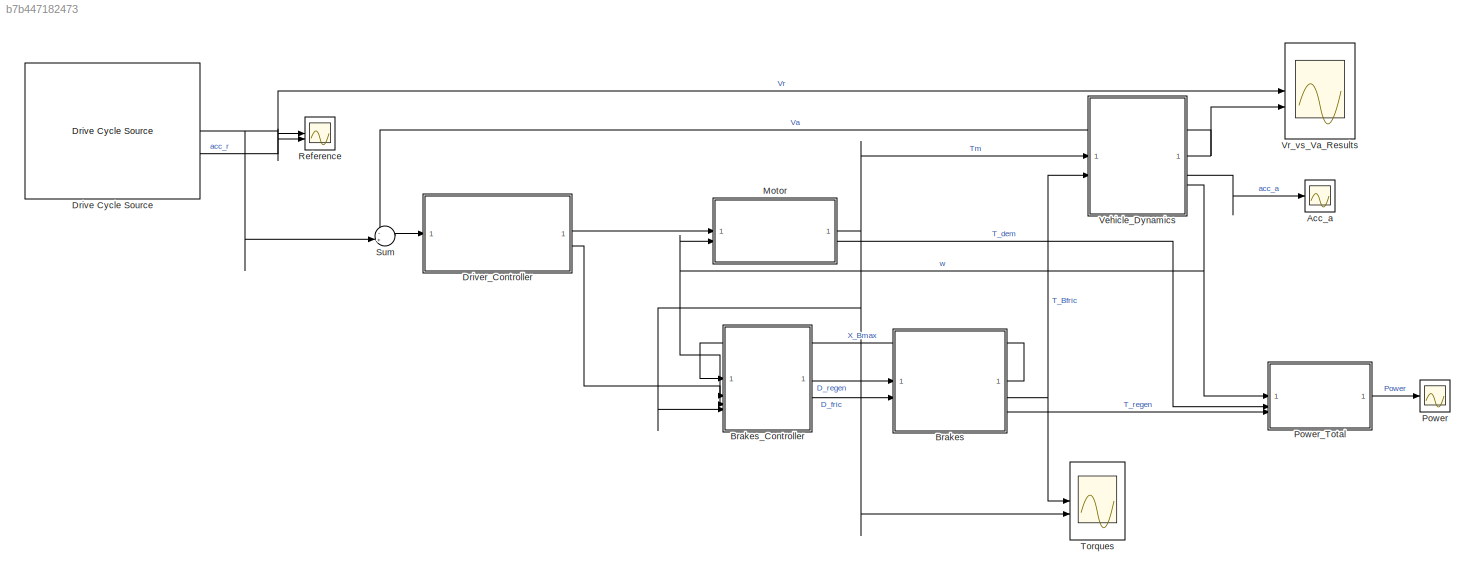
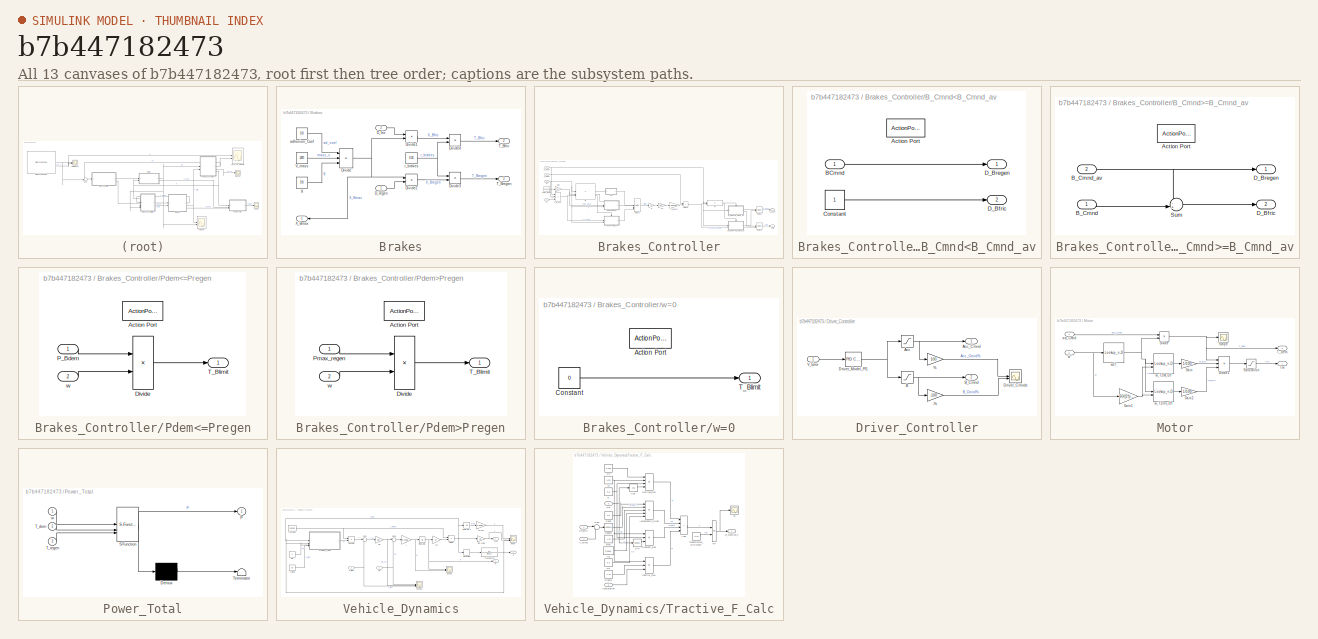
[diagram: thumbnail index - all 13 canvases of the model, root first then tree order]
MODEL slx_b7b447182473
KIND model
CONFIG AbsTol = auto
CONFIG EnableMultiTasking = off
CONFIG FixedStep = auto
CONFIG MaxStep = auto
CONFIG MinStep = auto
CONFIG RelTol = 1e-3
CONFIG SampleTimeConstraint = Unconstrained
CONFIG SolverName = VariableStepAuto
CONFIG StartTime = 0
CONFIG StopTime = 350
BLOCK [Scope] Acc_a
  Floating = off
  NumInputPorts = 1
  ScopeSpecificationString = Simulink.scopes.TimeScopeBlockCfg('CurrentConfiguration', extmgr.ConfigurationSet(extmgr.Configuration('Core','General UI',true),extmgr.Configuration('Core','Source UI',true),extmgr.Configuration('Sources','WiredSimulink',true,'DataLoggingVariableName','ScopeData1'),extmgr.Configuration('Visuals','Time Domain',true,'SerializedDisplays',{struct('MinYLimReal','-0.71311','MaxYLimReal','0.67349','YLab...<+1393ch>
BLOCK [SubSystem] Brakes
BLOCK [Inport] Brakes/D_fric
  Port = 2
BLOCK [Inport] Brakes/D_regen
BLOCK [Product] Brakes/Divide
  Inputs = ***
BLOCK [Product] Brakes/Divide1
  Inputs = **
BLOCK [Product] Brakes/Divide2
  Inputs = **
BLOCK [Product] Brakes/Divide3
  Inputs = **
BLOCK [Product] Brakes/Divide4
  Inputs = **
BLOCK [Outport] Brakes/T_Bfric
  Port = 2
BLOCK [Outport] Brakes/T_Bregen
  Port = 3
BLOCK [Constant] Brakes/V_mass
  Value = 1470
BLOCK [Outport] Brakes/X_Bmax
  NameLocation = top
BLOCK [Constant] Brakes/adhesion_Coef
  Value = 0.8
BLOCK [Constant] Brakes/g
  Value = 9.8
BLOCK [Constant] Brakes/r_brakes
  Value = 0.16
BLOCK [SubSystem] Brakes_Controller
BLOCK [Gain] Brakes_Controller/1//r_wheel
  Gain = 1/0.3638
BLOCK [Inport] Brakes_Controller/B_Cmnd
  Port = 3
BLOCK [SubSystem] Brakes_Controller/B_Cmnd<B_Cmnd_av
  TreatAsAtomicUnit = on
BLOCK [ActionPort] Brakes_Controller/B_Cmnd<B_Cmnd_av/Action Port
  ActionPortLabel = if(u1 > u2)
BLOCK [Inport] Brakes_Controller/B_Cmnd<B_Cmnd_av/BCmnd
BLOCK [Constant] Brakes_Controller/B_Cmnd<B_Cmnd_av/Constant
BLOCK [Outport] Brakes_Controller/B_Cmnd<B_Cmnd_av/D_Bfric
  Port = 2
BLOCK [Outport] Brakes_Controller/B_Cmnd<B_Cmnd_av/D_Bregen
BLOCK [SubSystem] Brakes_Controller/B_Cmnd>=B_Cmnd_av
  TreatAsAtomicUnit = on
BLOCK [ActionPort] Brakes_Controller/B_Cmnd>=B_Cmnd_av/Action Port
  ActionPortLabel = else
BLOCK [Inport] Brakes_Controller/B_Cmnd>=B_Cmnd_av/B_Cmnd
BLOCK [Inport] Brakes_Controller/B_Cmnd>=B_Cmnd_av/B_Cmnd_av
  Port = 2
BLOCK [Outport] Brakes_Controller/B_Cmnd>=B_Cmnd_av/D_Bfric
  Port = 2
BLOCK [Outport] Brakes_Controller/B_Cmnd>=B_Cmnd_av/D_Bregen
BLOCK [Sum] Brakes_Controller/B_Cmnd>=B_Cmnd_av/Sum
  Inputs = -+|
BLOCK [Outport] Brakes_Controller/D_fric
  Port = 2
BLOCK [Outport] Brakes_Controller/D_regen
BLOCK [Product] Brakes_Controller/Divide6
  Inputs = /*
BLOCK [Gain] Brakes_Controller/G
  Gain = 9.7
BLOCK [Gain] Brakes_Controller/Gain
  Gain = 0.97
BLOCK [If] Brakes_Controller/If3
  ElseIfExpressions = u3>u2
  IfExpression = u1 == 0
  NumInputs = 3
BLOCK [If] Brakes_Controller/If4
  IfExpression = u1 > u2
  NumInputs = 2
BLOCK [Merge] Brakes_Controller/Merge1
  Inputs = 3
BLOCK [Merge] Brakes_Controller/Merge2
BLOCK [Merge] Brakes_Controller/Merge3
BLOCK [Product] Brakes_Controller/P_B_dem
  Inputs = ***
BLOCK [SubSystem] Brakes_Controller/Pdem<=Pregen
  TreatAsAtomicUnit = on
BLOCK [ActionPort] Brakes_Controller/Pdem<=Pregen/Action Port
  ActionPortLabel = else
BLOCK [Product] Brakes_Controller/Pdem<=Pregen/Divide
  Inputs = */
BLOCK [Inport] Brakes_Controller/Pdem<=Pregen/P_Bdem
BLOCK [Outport] Brakes_Controller/Pdem<=Pregen/T_Blimit
BLOCK [Inport] Brakes_Controller/Pdem<=Pregen/w
  Port = 2
BLOCK [SubSystem] Brakes_Controller/Pdem>Pregen
  TreatAsAtomicUnit = on
BLOCK [ActionPort] Brakes_Controller/Pdem>Pregen/Action Port
  ActionPortLabel = elseif(u3>u2)
BLOCK [Product] Brakes_Controller/Pdem>Pregen/Divide
  Inputs = */
BLOCK [Inport] Brakes_Controller/Pdem>Pregen/Pmax_regen
BLOCK [Outport] Brakes_Controller/Pdem>Pregen/T_Blimit
BLOCK [Inport] Brakes_Controller/Pdem>Pregen/w
  Port = 2
BLOCK [Constant] Brakes_Controller/Pmax_regen
  Value = 55000
BLOCK [Inport] Brakes_Controller/Tm
  Port = 4
BLOCK [Inport] Brakes_Controller/X_Bmax
BLOCK [Gain] Brakes_Controller/nG
  Gain = 0.97
BLOCK [Inport] Brakes_Controller/w
  Port = 2
BLOCK [SubSystem] Brakes_Controller/w=0
  TreatAsAtomicUnit = on
BLOCK [ActionPort] Brakes_Controller/w=0/Action Port
  ActionPortLabel = if(u1 == 0)
BLOCK [Constant] Brakes_Controller/w=0/Constant
  Value = 0
BLOCK [Outport] Brakes_Controller/w=0/T_Blimit
BLOCK [Reference] Drive Cycle Source  REF=autolibshared/Drive Cycle Source
  AttributesFormatString = %<cycleVar> (%<tfinal>)
  LibrarySourceBlock = autolibscenario/Drive Cycle Source
  SourceBlock = autolibshared/Drive Cycle Source
  SourceType = Drive Cycle Source
BLOCK [SubSystem] Driver_Controller
BLOCK [Gain] Driver_Controller/%
  Gain = 100
BLOCK [Gain] Driver_Controller/-%
  Gain = -100
BLOCK [Saturate] Driver_Controller/Acc
  LowerLimit = 0
  UpperLimit = 1
BLOCK [Outport] Driver_Controller/Acc_Cmnd
BLOCK [Saturate] Driver_Controller/B
  LowerLimit = -1
  UpperLimit = 0
BLOCK [Outport] Driver_Controller/B_Cmnd
  Port = 2
BLOCK [Scope] Driver_Controller/Driver_Cmnds
  Floating = off
  NumInputPorts = 2
  ScopeSpecificationString = Simulink.scopes.TimeScopeBlockCfg('CurrentConfiguration', extmgr.ConfigurationSet(extmgr.Configuration('Core','General UI',true),extmgr.Configuration('Core','Source UI',true),extmgr.Configuration('Sources','WiredSimulink',true,'DataLoggingVariableName','ScopeData4'),extmgr.Configuration('Visuals','Time Domain',true,'SerializedDisplays',{struct('MinYLimReal','-12.5','MaxYLimReal','112.5','YLabelRea...<+2027ch>
BLOCK [Reference] Driver_Controller/Driver_Model_PI1  REF=slpidlib/PID Controller
  LibrarySourceBlock = simulink/Continuous/PID Controller
  SourceBlock = slpidlib/PID Controller
  SourceType = PID 1dof
BLOCK [Inport] Driver_Controller/V_Error
BLOCK [SubSystem] Motor
BLOCK [Product] Motor/Divide
  Inputs = **
BLOCK [Product] Motor/Divide1
  Inputs = ***
BLOCK [Gain] Motor/Gain
  Gain = 1/100
BLOCK [Gain] Motor/Gain1
  Gain = 60/(2*pi)
BLOCK [Gain] Motor/Gain2
  Gain = 1/100
BLOCK [Saturate] Motor/Saturation
  LowerLimit = -250
  UpperLimit = 250
BLOCK [Scope] Motor/Scope
  Floating = off
  NumInputPorts = 1
  ScopeSpecificationString = Simulink.scopes.TimeScopeBlockCfg('CurrentConfiguration', extmgr.ConfigurationSet(extmgr.Configuration('Core','General UI',true),extmgr.Configuration('Core','Source UI',true),extmgr.Configuration('Sources','WiredSimulink',true,'DataLoggingVariableName','ScopeData1'),extmgr.Configuration('Visuals','Time Domain',true,'SerializedDisplays',{struct('MinYLimReal','-31.24999','MaxYLimReal','281.24991','Y...<+1402ch>
BLOCK [Outport] Motor/T_dem
  Port = 2
BLOCK [Outport] Motor/Tm
BLOCK [Inport] Motor/acc_Cmnd
BLOCK [Inport] Motor/w
  Port = 2
BLOCK [Lookup_n-D] Motor/w2T
  BreakpointsForDimension1 = [0;4700;11400]
  InputPortMap = u0
  InternalRulePriority = Speed
  NumberOfTableDimensions = 1
  RndMeth = Simplest
  Table = [250;250;89]
BLOCK [Lookup_n-D] Motor/w_T2Inv_Eff
  BreakpointsForDimension1 = [0;50;100;150;200;250]
  BreakpointsForDimension2 = [0;1000;1200;1400;1600;1800;2000;2300;3000;4000;5000;6000;7000;8000;9000;10000;12000]
  InputPortMap = u0,u1
  InternalRulePriority = Speed
  RndMeth = Simplest
  Table = [84 86 88 90 91 92 93 94 95 96 97 98 98 98 98 98 98;84 86 88 90 91 92 93 94 96 97 97 98 98 99 99 98 99;86 88 90 91 92 93 94 95 96 97 98 98 99 99 99 99 99;86 88 90 91 92 93 94 95 96 97 98 98 98 99 0 0 0;86 88 90 91 92 93 94 95 96 97 98 98 0 0 0 0 0;86 88 90 91 92 93 94 95 96 97 0 0 0 0 0 0 0]
BLOCK [Lookup_n-D] Motor/w_T2M_Eff
  BreakpointsForDimension1 = [0;100;200;250]
  BreakpointsForDimension2 = [0;30;50;70;100;500;700;4000;5000;12000]
  InputPortMap = u0,u1
  InternalRulePriority = Speed
  RndMeth = Simplest
  Table = [60 70 80 85 90 95 97 60 60 90;60 70 80 85 90 95 95 97 97 95;70 80 85 85 90 95 95 97 97 0;70 80 85 80 85 90 95 95 97 0]
BLOCK [Scope] Power
  Floating = off
  NumInputPorts = 1
  ScopeSpecificationString = Simulink.scopes.TimeScopeBlockCfg('CurrentConfiguration', extmgr.ConfigurationSet(extmgr.Configuration('Core','General UI',true),extmgr.Configuration('Core','Source UI',true),extmgr.Configuration('Sources','WiredSimulink',true,'DataLoggingVariableName','ScopeData1'),extmgr.Configuration('Visuals','Time Domain',true,'SerializedDisplays',{struct('MinYLimReal','1246.25405','MaxYLimReal','3577.52126',...<+1415ch>
BLOCK [SubSystem] Power_Total
  ErrorFcn = Stateflow.Translate.translate
  LibrarySourceBlock = simulink/User-Defined\nFunctions/MATLAB Function
  PermitHierarchicalResolution = ExplicitOnly
  SFBlockType = MATLAB Function
  TreatAsAtomicUnit = on
BLOCK [Demux] Power_Total/ Demux 
  Outputs = 1
BLOCK [S-Function] Power_Total/ SFunction 
  EnableBusSupport = on
  FunctionName = sf_sfun
  PortCounts = [3 2]
  SFcnIsStateOwnerBlock = off
  SFunctionDeploymentMode = off
  Tag = Stateflow S-Function 2
BLOCK [Terminator] Power_Total/ Terminator 
BLOCK [Outport] Power_Total/P
BLOCK [Inport] Power_Total/T_dem
  Port = 2
BLOCK [Inport] Power_Total/T_regen
  Port = 3
BLOCK [Inport] Power_Total/w
BLOCK [Scope] Reference
  Floating = off
  NumInputPorts = 2
  ScopeSpecificationString = Simulink.scopes.TimeScopeBlockCfg('CurrentConfiguration', extmgr.ConfigurationSet(extmgr.Configuration('Core','General UI',true),extmgr.Configuration('Core','Source UI',true),extmgr.Configuration('Sources','WiredSimulink',true,'DataLoggingVariableName','ScopeData2'),extmgr.Configuration('Visuals','Time Domain',true,'SerializedDisplays',{struct('MinYLimReal','-11.40623','MaxYLimReal','102.65603','Y...<+2063ch>
BLOCK [Sum] Sum
  Inputs = -+|
BLOCK [Scope] Torques
  Floating = off
  NumInputPorts = 2
  ScopeSpecificationString = Simulink.scopes.TimeScopeBlockCfg('CurrentConfiguration', extmgr.ConfigurationSet(extmgr.Configuration('Core','General UI',true),extmgr.Configuration('Core','Source UI',true),extmgr.Configuration('Sources','WiredSimulink',true,'DataLoggingVariableName','ScopeData2'),extmgr.Configuration('Visuals','Time Domain',true,'SerializedDisplays',{struct('MinYLimReal','-2074.464','MaxYLimReal','230.496','YLa...<+2822ch>
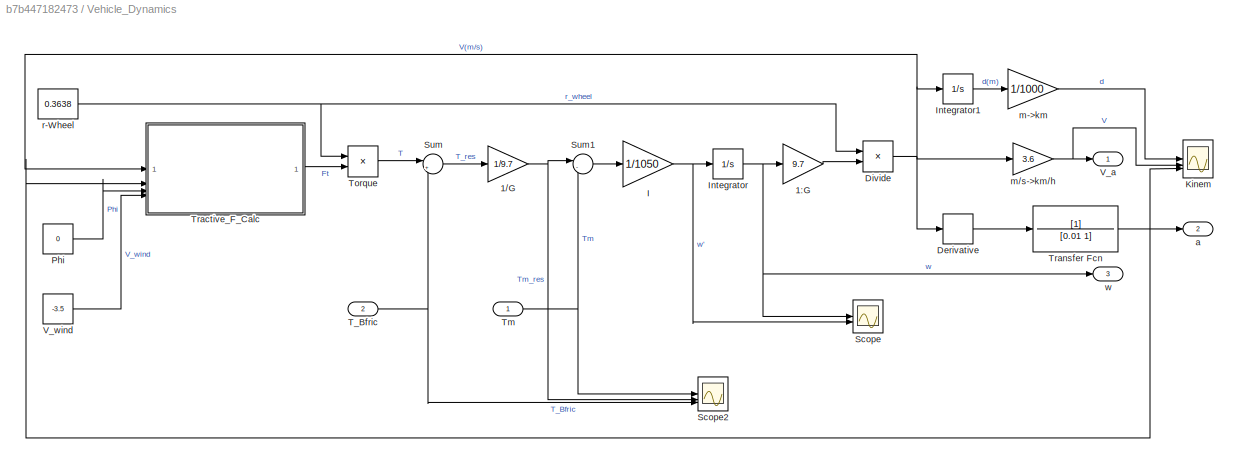
BLOCK [SubSystem] Vehicle_Dynamics
BLOCK [Gain] Vehicle_Dynamics/1//G
  Gain = 1/9.7
BLOCK [Gain] Vehicle_Dynamics/1:G
  Gain = 9.7
BLOCK [Derivative] Vehicle_Dynamics/Derivative
BLOCK [Product] Vehicle_Dynamics/Divide
  Inputs = **
BLOCK [Gain] Vehicle_Dynamics/I
  Gain = 1/1050
BLOCK [Integrator] Vehicle_Dynamics/Integrator
  LimitOutput = on
  LowerSaturationLimit = -11400*2*pi/60
  UpperSaturationLimit = 11400*2*pi/60
BLOCK [Integrator] Vehicle_Dynamics/Integrator1
BLOCK [Scope] Vehicle_Dynamics/Kinem
  Floating = off
  NumInputPorts = 3
  ScopeSpecificationString = Simulink.scopes.TimeScopeBlockCfg('CurrentConfiguration', extmgr.ConfigurationSet(extmgr.Configuration('Core','General UI',true),extmgr.Configuration('Core','Source UI',true),extmgr.Configuration('Sources','WiredSimulink',true,'DataLoggingVariableName','ScopeData2'),extmgr.Configuration('Visuals','Time Domain',true,'SerializedDisplays',{struct('MinYLimReal','-0.0336','MaxYLimReal','0.29977','YLabe...<+2766ch>
BLOCK [Constant] Vehicle_Dynamics/Phi
  Value = 0
BLOCK [Scope] Vehicle_Dynamics/Scope
  Floating = off
  NumInputPorts = 2
  ScopeSpecificationString = Simulink.scopes.TimeScopeBlockCfg('CurrentConfiguration', extmgr.ConfigurationSet(extmgr.Configuration('Core','General UI',true),extmgr.Configuration('Core','Source UI',true),extmgr.Configuration('Sources','WiredSimulink',true,'DataLoggingVariableName','ScopeData3'),extmgr.Configuration('Visuals','Time Domain',true,'SerializedDisplays',{struct('MinYLimReal','-62.58483','MaxYLimReal','6.95387','YLa...<+2043ch>
BLOCK [Scope] Vehicle_Dynamics/Scope2
  Floating = off
  NumInputPorts = 3
  ScopeSpecificationString = Simulink.scopes.TimeScopeBlockCfg('CurrentConfiguration', extmgr.ConfigurationSet(extmgr.Configuration('Core','General UI',true),extmgr.Configuration('Core','Source UI',true),extmgr.Configuration('Sources','WiredSimulink',true,'DataLoggingVariableName','ScopeData3'),extmgr.Configuration('Visuals','Time Domain',true,'SerializedDisplays',{struct('MinYLimReal','-20.00000','MaxYLimReal','180.00000','Y...<+2769ch>
BLOCK [Sum] Vehicle_Dynamics/Sum
  Inputs = |+-
BLOCK [Sum] Vehicle_Dynamics/Sum1
  Inputs = |-+
BLOCK [Inport] Vehicle_Dynamics/T_Bfric
  Port = 2
BLOCK [Inport] Vehicle_Dynamics/Tm
BLOCK [Product] Vehicle_Dynamics/Torque
  Inputs = **
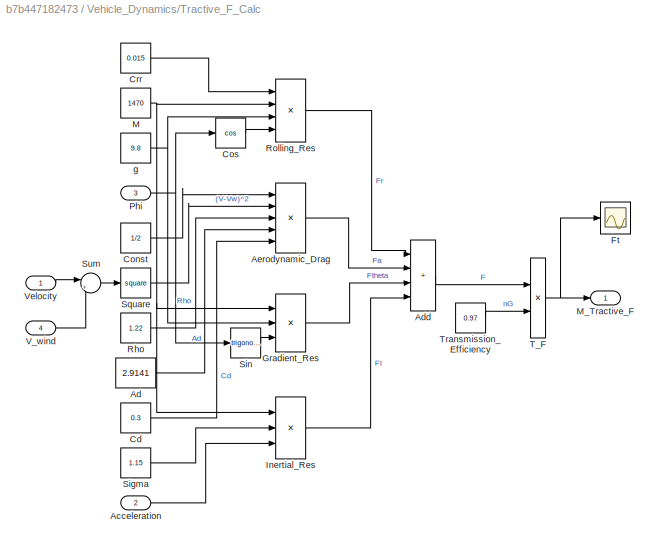
BLOCK [SubSystem] Vehicle_Dynamics/Tractive_F_Calc
BLOCK [Inport] Vehicle_Dynamics/Tractive_F_Calc/Acceleration
  Port = 2
BLOCK [Constant] Vehicle_Dynamics/Tractive_F_Calc/Ad
  Value = 2.9141
BLOCK [Sum] Vehicle_Dynamics/Tractive_F_Calc/Add
  IconShape = rectangular
  Inputs = ++++
BLOCK [Product] Vehicle_Dynamics/Tractive_F_Calc/Aerodynamic_Drag
  Inputs = *****
BLOCK [Constant] Vehicle_Dynamics/Tractive_F_Calc/Cd
  Value = 0.3
BLOCK [Constant] Vehicle_Dynamics/Tractive_F_Calc/Const
  Value = 1/2
BLOCK [Trigonometry] Vehicle_Dynamics/Tractive_F_Calc/Cos
  Operator = cos
BLOCK [Constant] Vehicle_Dynamics/Tractive_F_Calc/Crr
  Value = 0.015
BLOCK [Scope] Vehicle_Dynamics/Tractive_F_Calc/Ft
  Floating = off
  NumInputPorts = 1
  ScopeSpecificationString = Simulink.scopes.TimeScopeBlockCfg('CurrentConfiguration', extmgr.ConfigurationSet(extmgr.Configuration('Core','General UI',true),extmgr.Configuration('Core','Source UI',true),extmgr.Configuration('Sources','WiredSimulink',true,'DataLoggingVariableName','ScopeData2'),extmgr.Configuration('Visuals','Time Domain',true,'SerializedDisplays',{struct('MinYLimReal','-830959.00423','MaxYLimReal','7480899.0...<+1429ch>
BLOCK [Product] Vehicle_Dynamics/Tractive_F_Calc/Gradient_Res
  Inputs = ***
BLOCK [Product] Vehicle_Dynamics/Tractive_F_Calc/Inertial_Res
  Inputs = ***
BLOCK [Constant] Vehicle_Dynamics/Tractive_F_Calc/M
  Value = 1470
BLOCK [Outport] Vehicle_Dynamics/Tractive_F_Calc/M_Tractive_F
BLOCK [Inport] Vehicle_Dynamics/Tractive_F_Calc/Phi
  Port = 3
BLOCK [Constant] Vehicle_Dynamics/Tractive_F_Calc/Rho
  Value = 1.22
BLOCK [Product] Vehicle_Dynamics/Tractive_F_Calc/Rolling_Res
  Inputs = ****
BLOCK [Constant] Vehicle_Dynamics/Tractive_F_Calc/Sigma
  Value = 1.15
BLOCK [Trigonometry] Vehicle_Dynamics/Tractive_F_Calc/Sin
BLOCK [Math] Vehicle_Dynamics/Tractive_F_Calc/Square
  Operator = square
BLOCK [Sum] Vehicle_Dynamics/Tractive_F_Calc/Sum
  Inputs = |+-
BLOCK [Product] Vehicle_Dynamics/Tractive_F_Calc/T_F
  Inputs = */
BLOCK [Constant] Vehicle_Dynamics/Tractive_F_Calc/Transmission_Efficiency
  Value = 0.97
BLOCK [Inport] Vehicle_Dynamics/Tractive_F_Calc/V_wind
  Port = 4
BLOCK [Inport] Vehicle_Dynamics/Tractive_F_Calc/Velocity
BLOCK [Constant] Vehicle_Dynamics/Tractive_F_Calc/g
  Value = 9.8
BLOCK [TransferFcn] Vehicle_Dynamics/Transfer Fcn
  Denominator = [0.01 1]
BLOCK [Outport] Vehicle_Dynamics/V_a
BLOCK [Constant] Vehicle_Dynamics/V_wind
  Value = -3.5
BLOCK [Outport] Vehicle_Dynamics/a
  Port = 2
BLOCK [Gain] Vehicle_Dynamics/m->km
  Gain = 1/1000
BLOCK [Gain] Vehicle_Dynamics/m//s->km//h
  Gain = 3.6
BLOCK [Constant] Vehicle_Dynamics/r-Wheel
  Value = 0.3638
BLOCK [Outport] Vehicle_Dynamics/w
  Port = 3
BLOCK [Scope] Vr_vs_Va_Results
  Floating = off
  NumInputPorts = 2
  ScopeSpecificationString = Simulink.scopes.TimeScopeBlockCfg('CurrentConfiguration', extmgr.ConfigurationSet(extmgr.Configuration('Core','General UI',true),extmgr.Configuration('Core','Source UI',true),extmgr.Configuration('Sources','WiredSimulink',true,'DataLoggingVariableName','ScopeData1'),extmgr.Configuration('Visuals','Time Domain',true,'SerializedDisplays',{struct('MinYLimReal','-15.47501','MaxYLimReal','109.17939','Y...<+1472ch>
LINE Brakes/D_fric:1 -> Brakes/Divide1:1
LINE Brakes/D_regen:1 -> Brakes/Divide2:2
LINE Brakes/Divide1:1 -> Brakes/Divide4:1
LINE Brakes/Divide2:1 -> Brakes/Divide3:2
LINE Brakes/Divide3:1 -> Brakes/T_Bregen:1
LINE Brakes/Divide4:1 -> Brakes/T_Bfric:1
NET Brakes/Divide:1 -> Brakes/Divide1:2, Brakes/Divide2:1, Brakes/X_Bmax:1
LINE Brakes/V_mass:1 -> Brakes/Divide:2
LINE Brakes/adhesion_Coef:1 -> Brakes/Divide:1
LINE Brakes/g:1 -> Brakes/Divide:3
NET Brakes/r_brakes:1 -> Brakes/Divide3:1, Brakes/Divide4:2
LINE Brakes:1 -> Brakes_Controller:1
NET Brakes:2 -> Torques:1, Vehicle_Dynamics:2
LINE Brakes:3 -> Power_Total:3
LINE Brakes_Controller/1//r_wheel:1 -> Brakes_Controller/Divide6:2
NET Brakes_Controller/B_Cmnd:1 -> Brakes_Controller/B_Cmnd<B_Cmnd_av:1, Brakes_Controller/B_Cmnd>=B_Cmnd_av:1, Brakes_Controller/If4:1, Brakes_Controller/P_B_dem:1
LINE Brakes_Controller/B_Cmnd<B_Cmnd_av/BCmnd:1 -> Brakes_Controller/B_Cmnd<B_Cmnd_av/D_Bregen:1
LINE Brakes_Controller/B_Cmnd<B_Cmnd_av/Constant:1 -> Brakes_Controller/B_Cmnd<B_Cmnd_av/D_Bfric:1
LINE Brakes_Controller/B_Cmnd<B_Cmnd_av:1 -> Brakes_Controller/Merge2:1
LINE Brakes_Controller/B_Cmnd<B_Cmnd_av:2 -> Brakes_Controller/Merge3:1
LINE Brakes_Controller/B_Cmnd>=B_Cmnd_av/B_Cmnd:1 -> Brakes_Controller/B_Cmnd>=B_Cmnd_av/Sum:2
NET Brakes_Controller/B_Cmnd>=B_Cmnd_av/B_Cmnd_av:1 -> Brakes_Controller/B_Cmnd>=B_Cmnd_av/D_Bregen:1, Brakes_Controller/B_Cmnd>=B_Cmnd_av/Sum:1
LINE Brakes_Controller/B_Cmnd>=B_Cmnd_av/Sum:1 -> Brakes_Controller/B_Cmnd>=B_Cmnd_av/D_Bfric:1
LINE Brakes_Controller/B_Cmnd>=B_Cmnd_av:1 -> Brakes_Controller/Merge2:2
LINE Brakes_Controller/B_Cmnd>=B_Cmnd_av:2 -> Brakes_Controller/Merge3:2
NET Brakes_Controller/Divide6:1 -> Brakes_Controller/B_Cmnd>=B_Cmnd_av:2, Brakes_Controller/If4:2
LINE Brakes_Controller/G:1 -> Brakes_Controller/nG:1
NET Brakes_Controller/Gain:1 -> Brakes_Controller/If3:2, Brakes_Controller/Pdem>Pregen:1
LINE Brakes_Controller/If3:1 -> Brakes_Controller/w=0:ifaction
LINE Brakes_Controller/If3:2 -> Brakes_Controller/Pdem>Pregen:ifaction
LINE Brakes_Controller/If3:3 -> Brakes_Controller/Pdem<=Pregen:ifaction
LINE Brakes_Controller/If4:1 -> Brakes_Controller/B_Cmnd<B_Cmnd_av:ifaction
LINE Brakes_Controller/If4:2 -> Brakes_Controller/B_Cmnd>=B_Cmnd_av:ifaction
LINE Brakes_Controller/Merge1:1 -> Brakes_Controller/G:1
LINE Brakes_Controller/Merge2:1 -> Brakes_Controller/D_regen:1
LINE Brakes_Controller/Merge3:1 -> Brakes_Controller/D_fric:1
NET Brakes_Controller/P_B_dem:1 -> Brakes_Controller/If3:3, Brakes_Controller/Pdem<=Pregen:1
LINE Brakes_Controller/Pdem<=Pregen/Divide:1 -> Brakes_Controller/Pdem<=Pregen/T_Blimit:1
LINE Brakes_Controller/Pdem<=Pregen/P_Bdem:1 -> Brakes_Controller/Pdem<=Pregen/Divide:1
LINE Brakes_Controller/Pdem<=Pregen/w:1 -> Brakes_Controller/Pdem<=Pregen/Divide:2
LINE Brakes_Controller/Pdem<=Pregen:1 -> Brakes_Controller/Merge1:3
LINE Brakes_Controller/Pdem>Pregen/Divide:1 -> Brakes_Controller/Pdem>Pregen/T_Blimit:1
LINE Brakes_Controller/Pdem>Pregen/Pmax_regen:1 -> Brakes_Controller/Pdem>Pregen/Divide:1
LINE Brakes_Controller/Pdem>Pregen/w:1 -> Brakes_Controller/Pdem>Pregen/Divide:2
LINE Brakes_Controller/Pdem>Pregen:1 -> Brakes_Controller/Merge1:2
LINE Brakes_Controller/Pmax_regen:1 -> Brakes_Controller/Gain:1
LINE Brakes_Controller/Tm:1 -> Brakes_Controller/P_B_dem:3
LINE Brakes_Controller/X_Bmax:1 -> Brakes_Controller/Divide6:1
LINE Brakes_Controller/nG:1 -> Brakes_Controller/1//r_wheel:1
NET Brakes_Controller/w:1 -> Brakes_Controller/If3:1, Brakes_Controller/P_B_dem:2, Brakes_Controller/Pdem<=Pregen:2, Brakes_Controller/Pdem>Pregen:2
LINE Brakes_Controller/w=0/Constant:1 -> Brakes_Controller/w=0/T_Blimit:1
LINE Brakes_Controller/w=0:1 -> Brakes_Controller/Merge1:1
LINE Brakes_Controller:1 -> Brakes:1
LINE Brakes_Controller:2 -> Brakes:2
NET Drive Cycle Source:1 -> Reference:1, Sum:2, Vr_vs_Va_Results:1
LINE Drive Cycle Source:2 -> Reference:2
LINE Driver_Controller/%:1 -> Driver_Controller/Driver_Cmnds:1
LINE Driver_Controller/-%:1 -> Driver_Controller/Driver_Cmnds:2
NET Driver_Controller/Acc:1 -> Driver_Controller/%:1, Driver_Controller/Acc_Cmnd:1
NET Driver_Controller/B:1 -> Driver_Controller/-%:1, Driver_Controller/B_Cmnd:1
NET Driver_Controller/Driver_Model_PI1:1 -> Driver_Controller/Acc:1, Driver_Controller/B:1
LINE Driver_Controller/V_Error:1 -> Driver_Controller/Driver_Model_PI1:1
LINE Driver_Controller:1 -> Motor:1
LINE Driver_Controller:2 -> Brakes_Controller:3
LINE Motor/Divide1:1 -> Motor/Saturation:1
NET Motor/Divide:1 -> Motor/Divide1:1, Motor/Scope:1, Motor/T_dem:1
NET Motor/Gain1:1 -> Motor/w_T2Inv_Eff:2, Motor/w_T2M_Eff:2
LINE Motor/Gain2:1 -> Motor/Divide1:3
LINE Motor/Gain:1 -> Motor/Divide1:2
LINE Motor/Saturation:1 -> Motor/Tm:1
LINE Motor/acc_Cmnd:1 -> Motor/Divide:1
NET Motor/w2T:1 -> Motor/Divide:2, Motor/w_T2Inv_Eff:1, Motor/w_T2M_Eff:1
NET Motor/w:1 -> Motor/Gain1:1, Motor/w2T:1
LINE Motor/w_T2Inv_Eff:1 -> Motor/Gain2:1
LINE Motor/w_T2M_Eff:1 -> Motor/Gain:1
NET Motor:1 -> Brakes_Controller:4, Torques:2, Vehicle_Dynamics:1
LINE Motor:2 -> Power_Total:2
LINE Power_Total:1 -> Power:1
LINE Sum:1 -> Driver_Controller:1
NET Vehicle_Dynamics/1//G:1 -> Vehicle_Dynamics/Scope2:2, Vehicle_Dynamics/Sum1:1
LINE Vehicle_Dynamics/1:G:1 -> Vehicle_Dynamics/Divide:2
LINE Vehicle_Dynamics/Derivative:1 -> Vehicle_Dynamics/Transfer Fcn:1
NET Vehicle_Dynamics/Divide:1 -> Vehicle_Dynamics/Derivative:1, Vehicle_Dynamics/Integrator1:1, Vehicle_Dynamics/Tractive_F_Calc:1, Vehicle_Dynamics/m//s->km//h:1
NET Vehicle_Dynamics/I:1 -> Vehicle_Dynamics/Integrator:1, Vehicle_Dynamics/Scope:2
LINE Vehicle_Dynamics/Integrator1:1 -> Vehicle_Dynamics/m->km:1
NET Vehicle_Dynamics/Integrator:1 -> Vehicle_Dynamics/1:G:1, Vehicle_Dynamics/Scope:1, Vehicle_Dynamics/w:1
LINE Vehicle_Dynamics/Phi:1 -> Vehicle_Dynamics/Tractive_F_Calc:3
LINE Vehicle_Dynamics/Sum1:1 -> Vehicle_Dynamics/I:1
LINE Vehicle_Dynamics/Sum:1 -> Vehicle_Dynamics/1//G:1
NET Vehicle_Dynamics/T_Bfric:1 -> Vehicle_Dynamics/Scope2:3, Vehicle_Dynamics/Sum:2
NET Vehicle_Dynamics/Tm:1 -> Vehicle_Dynamics/Scope2:1, Vehicle_Dynamics/Sum1:2
LINE Vehicle_Dynamics/Torque:1 -> Vehicle_Dynamics/Sum:1
LINE Vehicle_Dynamics/Tractive_F_Calc/Acceleration:1 -> Vehicle_Dynamics/Tractive_F_Calc/Inertial_Res:3
LINE Vehicle_Dynamics/Tractive_F_Calc/Ad:1 -> Vehicle_Dynamics/Tractive_F_Calc/Aerodynamic_Drag:4
LINE Vehicle_Dynamics/Tractive_F_Calc/Add:1 -> Vehicle_Dynamics/Tractive_F_Calc/T_F:1
LINE Vehicle_Dynamics/Tractive_F_Calc/Aerodynamic_Drag:1 -> Vehicle_Dynamics/Tractive_F_Calc/Add:2
LINE Vehicle_Dynamics/Tractive_F_Calc/Cd:1 -> Vehicle_Dynamics/Tractive_F_Calc/Aerodynamic_Drag:5
LINE Vehicle_Dynamics/Tractive_F_Calc/Const:1 -> Vehicle_Dynamics/Tractive_F_Calc/Aerodynamic_Drag:1
LINE Vehicle_Dynamics/Tractive_F_Calc/Cos:1 -> Vehicle_Dynamics/Tractive_F_Calc/Rolling_Res:4
LINE Vehicle_Dynamics/Tractive_F_Calc/Crr:1 -> Vehicle_Dynamics/Tractive_F_Calc/Rolling_Res:1
LINE Vehicle_Dynamics/Tractive_F_Calc/Gradient_Res:1 -> Vehicle_Dynamics/Tractive_F_Calc/Add:3
LINE Vehicle_Dynamics/Tractive_F_Calc/Inertial_Res:1 -> Vehicle_Dynamics/Tractive_F_Calc/Add:4
NET Vehicle_Dynamics/Tractive_F_Calc/M:1 -> Vehicle_Dynamics/Tractive_F_Calc/Gradient_Res:1, Vehicle_Dynamics/Tractive_F_Calc/Inertial_Res:1, Vehicle_Dynamics/Tractive_F_Calc/Rolling_Res:2
NET Vehicle_Dynamics/Tractive_F_Calc/Phi:1 -> Vehicle_Dynamics/Tractive_F_Calc/Cos:1, Vehicle_Dynamics/Tractive_F_Calc/Sin:1
LINE Vehicle_Dynamics/Tractive_F_Calc/Rho:1 -> Vehicle_Dynamics/Tractive_F_Calc/Aerodynamic_Drag:3
LINE Vehicle_Dynamics/Tractive_F_Calc/Rolling_Res:1 -> Vehicle_Dynamics/Tractive_F_Calc/Add:1
LINE Vehicle_Dynamics/Tractive_F_Calc/Sigma:1 -> Vehicle_Dynamics/Tractive_F_Calc/Inertial_Res:2
LINE Vehicle_Dynamics/Tractive_F_Calc/Sin:1 -> Vehicle_Dynamics/Tractive_F_Calc/Gradient_Res:3
LINE Vehicle_Dynamics/Tractive_F_Calc/Square:1 -> Vehicle_Dynamics/Tractive_F_Calc/Aerodynamic_Drag:2
LINE Vehicle_Dynamics/Tractive_F_Calc/Sum:1 -> Vehicle_Dynamics/Tractive_F_Calc/Square:1
NET Vehicle_Dynamics/Tractive_F_Calc/T_F:1 -> Vehicle_Dynamics/Tractive_F_Calc/Ft:1, Vehicle_Dynamics/Tractive_F_Calc/M_Tractive_F:1
LINE Vehicle_Dynamics/Tractive_F_Calc/Transmission_Efficiency:1 -> Vehicle_Dynamics/Tractive_F_Calc/T_F:2
LINE Vehicle_Dynamics/Tractive_F_Calc/V_wind:1 -> Vehicle_Dynamics/Tractive_F_Calc/Sum:2
LINE Vehicle_Dynamics/Tractive_F_Calc/Velocity:1 -> Vehicle_Dynamics/Tractive_F_Calc/Sum:1
NET Vehicle_Dynamics/Tractive_F_Calc/g:1 -> Vehicle_Dynamics/Tractive_F_Calc/Gradient_Res:2, Vehicle_Dynamics/Tractive_F_Calc/Rolling_Res:3
LINE Vehicle_Dynamics/Tractive_F_Calc:1 -> Vehicle_Dynamics/Torque:2
NET Vehicle_Dynamics/Transfer Fcn:1 -> Vehicle_Dynamics/Kinem:3, Vehicle_Dynamics/Tractive_F_Calc:2, Vehicle_Dynamics/a:1
LINE Vehicle_Dynamics/V_wind:1 -> Vehicle_Dynamics/Tractive_F_Calc:4
LINE Vehicle_Dynamics/m->km:1 -> Vehicle_Dynamics/Kinem:1
NET Vehicle_Dynamics/m//s->km//h:1 -> Vehicle_Dynamics/Kinem:2, Vehicle_Dynamics/V_a:1
NET Vehicle_Dynamics/r-Wheel:1 -> Vehicle_Dynamics/Divide:1, Vehicle_Dynamics/Torque:1
NET Vehicle_Dynamics:1 -> Sum:1, Vr_vs_Va_Results:2
LINE Vehicle_Dynamics:2 -> Acc_a:1
NET Vehicle_Dynamics:3 -> Brakes_Controller:2, Motor:2, Power_Total:1
note: NET lines group one-source signal fan-out (src -> all destinations, sorted); 1:1 wires keep LINE
CHART Power_Total states=1 transitions=1
  STATE_LABEL 'eML_blk_kernel()'
  STATE_LABEL 'SCRIPT:\nfunction P = fcn(w,T_dem, T_regen)\nT = T_dem - T_regen;\nP_driv = T*w;\n\nACond = 500;\nAud = 35;\nDrCtrl = 150;\nEMS = 150;\nMLights = 120;\nSLamps = 50;\nHorn = 10;\nSteering = 400;\nW = 80;\nWDef = 250;\nWip = 40;\nP_ac = ACond+Aud+DrCtrl+EMS+MLights+SLamps+Horn+Steering+W+WDef+Wip;\n\nB_eff = 0.95;\nConv_eff = 0.9;\nP_aux = P_ac*B_eff*Conv_eff;\n\nPower = P_driv + P_aux;\n\nP = Power;\n'
CHART  states=0 transitions=0
